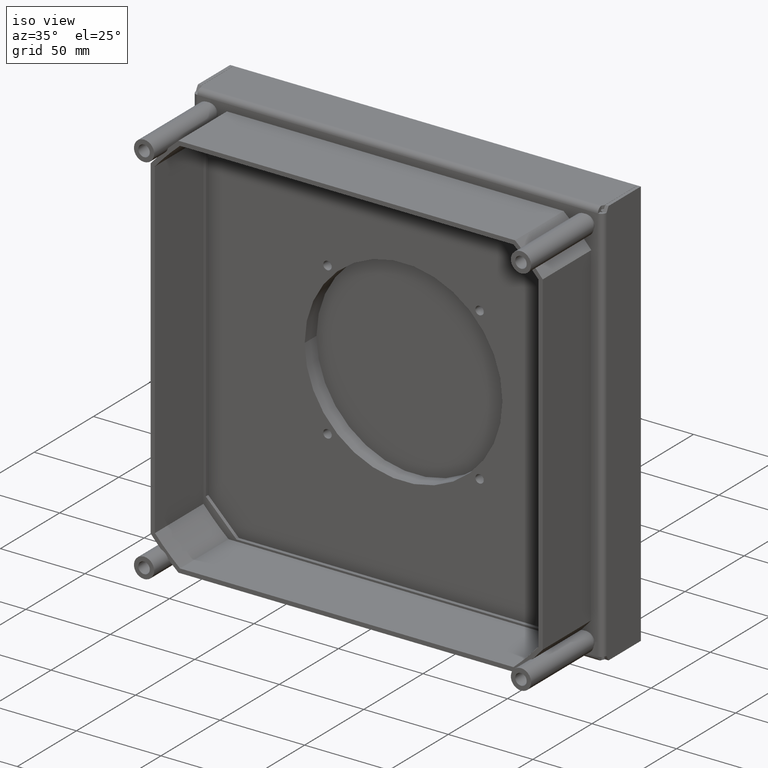
[diagram: clean part render]
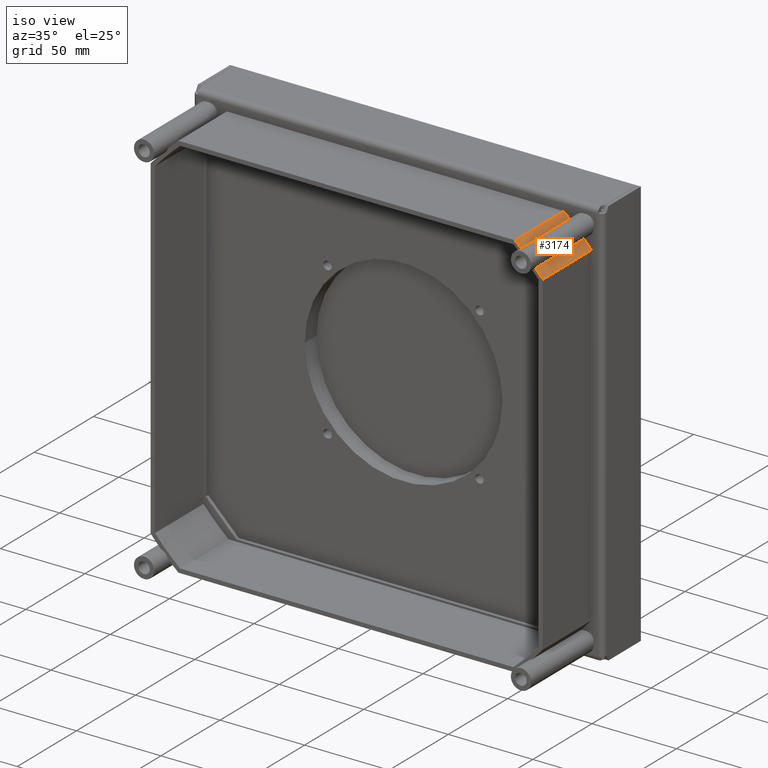
[diagram: same view with one face highlighted and labeled with its STEP entity id]
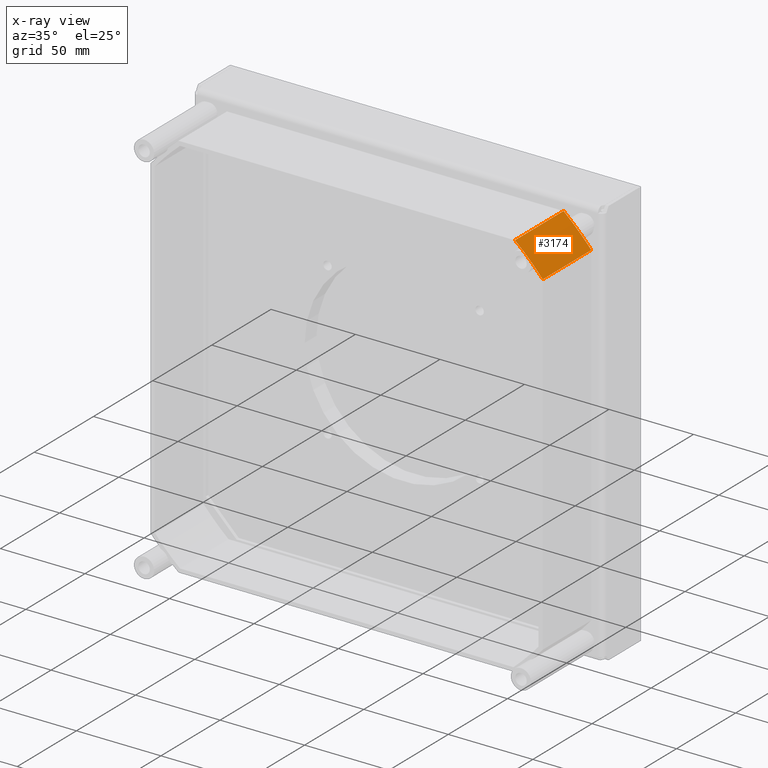
[diagram: x-ray of the same camera — body ghosted, the highlighted face saturated]
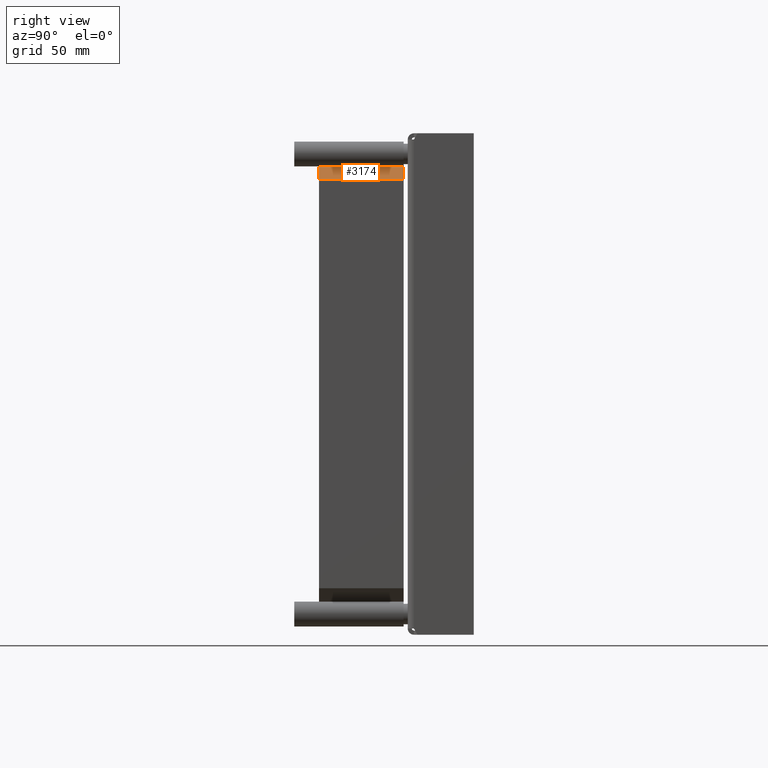
[diagram: same view with one face highlighted and labeled with its STEP entity id]
A machine part, iso view. The second image highlights one B-rep face of the part: STEP entity #3174.
The next image is the same camera in x-ray: the body ghosted, the highlighted face saturated — about 0% of this face is hidden behind the body in this view.
A second angle (right view) of the same face is appended — the face is thin or edge-on in the first view.
In plain terms, the highlighted cylindrical surface (partial cylindrical patch) has radius 152.5 mm, axis along (0, 1, 0).
Its self-contained STEP definition (entity closure, byte-faithful):
#2679=CARTESIAN_POINT('',(0.E0,0.E0,0.E0));
#2680=DIRECTION('',(0.E0,1.E0,0.E0));
#2681=DIRECTION('',(6.529777985314E-1,0.E0,7.573770491803E-1));
#2682=AXIS2_PLACEMENT_3D('',#2679,#2680,#2681);
#2742=CARTESIAN_POINT('',(0.E0,-4.1E1,0.E0));
#2743=DIRECTION('',(0.E0,1.E0,0.E0));
#2744=DIRECTION('',(6.529777985314E-1,0.E0,7.573770491803E-1));
#2745=AXIS2_PLACEMENT_3D('',#2742,#2743,#2744);
#2834=DIRECTION('',(0.E0,-1.E0,0.E0));
#2835=VECTOR('',#2834,4.1E1);
#2836=CARTESIAN_POINT('',(9.957911427604E1,0.E0,1.155E2));
#2837=LINE('',#2836,#2835);
#2850=DIRECTION('',(0.E0,-1.E0,0.E0));
#2851=VECTOR('',#2850,4.1E1);
#2852=CARTESIAN_POINT('',(1.16E2,0.E0,9.899621204874E1));
#2853=LINE('',#2852,#2851);
#2926=CARTESIAN_POINT('',(9.957911427604E1,0.E0,1.155E2));
#2927=CARTESIAN_POINT('',(1.16E2,0.E0,9.899621204874E1));
#2928=VERTEX_POINT('',#2926);
#2929=VERTEX_POINT('',#2927);
#2932=CARTESIAN_POINT('',(9.957911427604E1,-4.1E1,1.155E2));
#2933=CARTESIAN_POINT('',(1.16E2,-4.1E1,9.899621204874E1));
#2934=VERTEX_POINT('',#2932);
#2935=VERTEX_POINT('',#2933);
#3162=CARTESIAN_POINT('',(0.E0,0.E0,0.E0));
#3163=DIRECTION('',(0.E0,1.E0,0.E0));
#3164=DIRECTION('',(-1.E0,0.E0,0.E0));
#3165=AXIS2_PLACEMENT_3D('',#3162,#3163,#3164);
#3166=CYLINDRICAL_SURFACE('',#3165,1.525E2);
#3167=ORIENTED_EDGE('',*,*,#2957,.T.);
#3169=ORIENTED_EDGE('',*,*,#3168,.T.);
#3170=ORIENTED_EDGE('',*,*,#3010,.F.);
#3171=ORIENTED_EDGE('',*,*,#3154,.F.);
#3172=EDGE_LOOP('',(#3167,#3169,#3170,#3171));
#3173=FACE_OUTER_BOUND('',#3172,.F.);
#2683=CIRCLE('',#2682,1.525E2);
#2746=CIRCLE('',#2745,1.525E2);
#2957=EDGE_CURVE('',#2928,#2929,#2683,.T.);
#3010=EDGE_CURVE('',#2934,#2935,#2746,.T.);
#3154=EDGE_CURVE('',#2928,#2934,#2837,.T.);
#3168=EDGE_CURVE('',#2929,#2935,#2853,.T.);
#3174=ADVANCED_FACE('',(#3173),#3166,.T.);